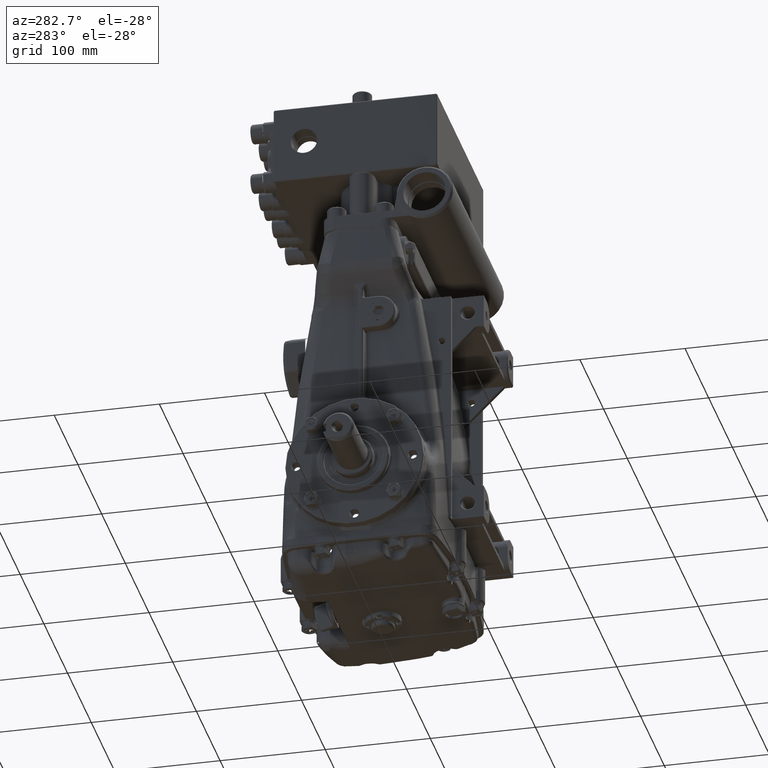
[diagram: clean part render]
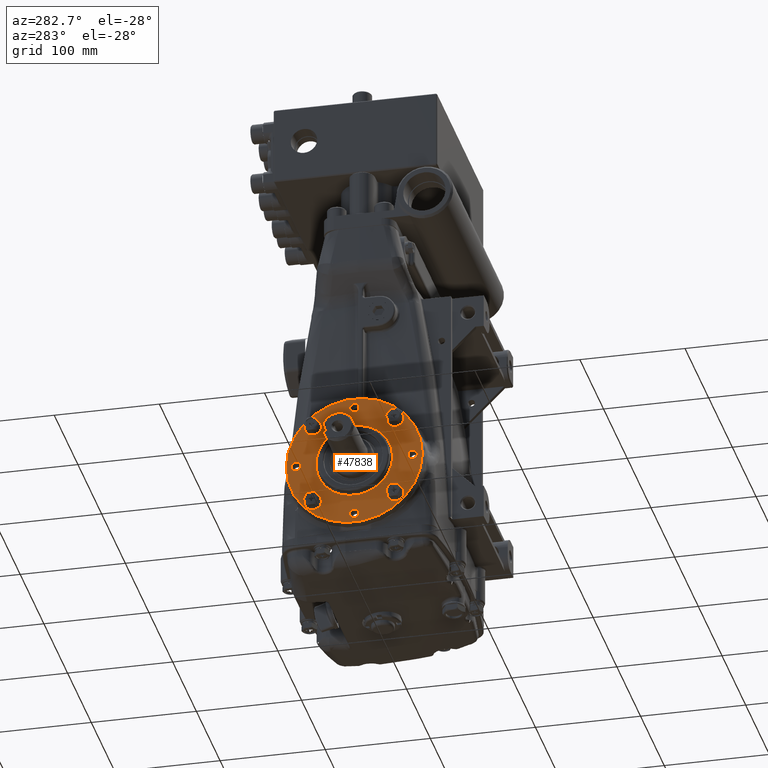
[diagram: same view with one face highlighted and labeled with its STEP entity id]
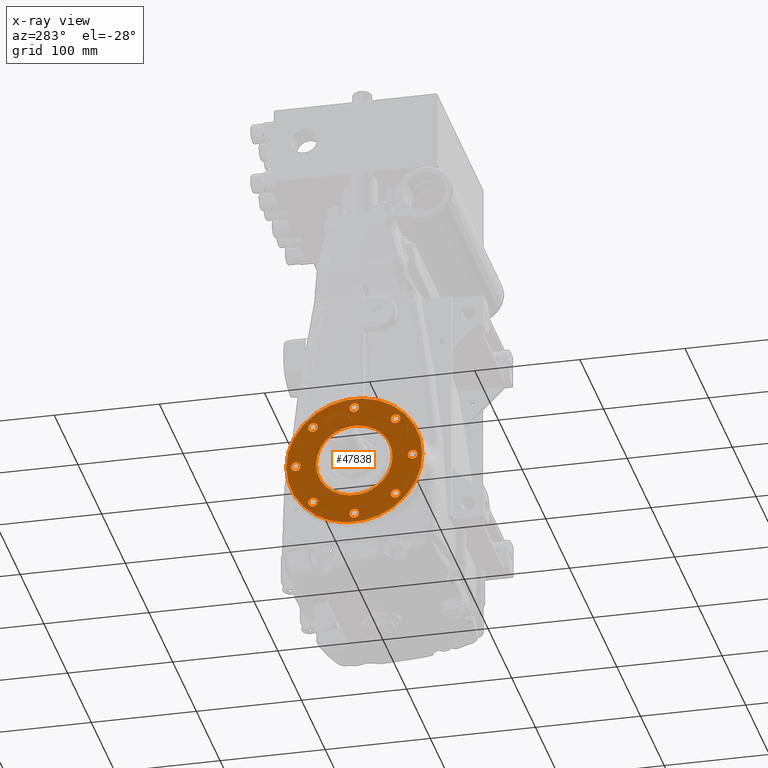
[diagram: x-ray of the same camera — body ghosted, the highlighted face saturated]
A machine part, auxiliary view. The second image highlights one B-rep face of the part: STEP entity #47838.
The next image is the same camera in x-ray: the body ghosted, the highlighted face saturated — about 4% of this face is hidden behind the body in this view.
In plain terms, the highlighted planar face has unit normal (-1, -0, 0).
Its self-contained STEP definition (entity closure, byte-faithful):
#183 = EDGE_LOOP ( 'NONE', ( #9369, #27994 ) ) ;
#824 = FACE_BOUND ( 'NONE', #49674, .T. ) ;
#887 = CARTESIAN_POINT ( 'NONE',  ( -4.763779527559056426, -3.201812557543903254E-16, -2.185039370078739829 ) ) ;
#1343 = DIRECTION ( 'NONE',  ( 1.224606353822377258E-16, -1.000000000000000000, 0.000000000000000000 ) ) ;
#1467 = DIRECTION ( 'NONE',  ( -1.000000000000000000, -1.224606353822377258E-16, 0.000000000000000000 ) ) ;
#3264 = DIRECTION ( 'NONE',  ( 1.000000000000000000, 1.224606353822377258E-16, -0.000000000000000000 ) ) ;
#3709 = VERTEX_POINT ( 'NONE', #66654 ) ;
#5013 = AXIS2_PLACEMENT_3D ( 'NONE', #38679, #53868, #5574 ) ;
#5574 = DIRECTION ( 'NONE',  ( 2.143124018246235517E-16, -1.000000000000000000, 0.000000000000000000 ) ) ;
#6235 = EDGE_CURVE ( 'NONE', #61597, #103043, #75857, .T. ) ;
#6705 = ORIENTED_EDGE ( 'NONE', *, *, #15991, .F. ) ;
#7317 = VERTEX_POINT ( 'NONE', #83175 ) ;
#8356 = ORIENTED_EDGE ( 'NONE', *, *, #20787, .F. ) ;
#8718 = EDGE_CURVE ( 'NONE', #79097, #87311, #29249, .T. ) ;
#8769 = CARTESIAN_POINT ( 'NONE',  ( -4.763779527559056426, -0.1771653543307089018, -2.185039370078739829 ) ) ;
#9369 = ORIENTED_EDGE ( 'NONE', *, *, #9974, .T. ) ;
#9974 = EDGE_CURVE ( 'NONE', #78466, #95333, #42811, .T. ) ;
#10071 = AXIS2_PLACEMENT_3D ( 'NONE', #55251, #71558, #86767 ) ;
#10822 = CARTESIAN_POINT ( 'NONE',  ( -4.763779527559055538, -2.185039370078740717, 2.048885995248197414E-16 ) ) ;
#10904 = AXIS2_PLACEMENT_3D ( 'NONE', #16111, #48141, #23485 ) ;
#11481 = CARTESIAN_POINT ( 'NONE',  ( -4.763779527559056426, 1.437007874015747921, 4.491675086927193450E-16 ) ) ;
#11531 = DIRECTION ( 'NONE',  ( 0.000000000000000000, -1.000000000000000000, 0.000000000000000000 ) ) ;
#13134 = ORIENTED_EDGE ( 'NONE', *, *, #33401, .F. ) ;
#14267 = CIRCLE ( 'NONE', #76355, 0.1771653543307085965 ) ;
#14568 = EDGE_CURVE ( 'NONE', #43127, #96000, #31485, .T. ) ;
#14634 = DIRECTION ( 'NONE',  ( -1.000000000000000000, -1.224606353822377258E-16, 0.000000000000000000 ) ) ;
#15774 = EDGE_CURVE ( 'NONE', #95333, #78466, #85443, .T. ) ;
#15991 = EDGE_CURVE ( 'NONE', #45094, #72563, #55311, .T. ) ;
#16055 = FACE_BOUND ( 'NONE', #34066, .T. ) ;
#16111 = CARTESIAN_POINT ( 'NONE',  ( -4.763779527559056426, -1.545056155742262849, 1.545056155742256188 ) ) ;
#17090 = CARTESIAN_POINT ( 'NONE',  ( -4.763779527559056426, 1.358267716535432879, 2.731847993664263218E-16 ) ) ;
#17144 = AXIS2_PLACEMENT_3D ( 'NONE', #17090, #96894, #1343 ) ;
#17663 = CARTESIAN_POINT ( 'NONE',  ( -4.763779527559056426, -1.437007874015748587, 2.731847993664263218E-16 ) ) ;
#18390 = AXIS2_PLACEMENT_3D ( 'NONE', #33959, #72301, #103746 ) ;
#18956 = AXIS2_PLACEMENT_3D ( 'NONE', #40838, #95422, #64447 ) ;
#19214 = DIRECTION ( 'NONE',  ( 0.000000000000000000, -1.000000000000000000, 0.000000000000000000 ) ) ;
#19281 = ORIENTED_EDGE ( 'NONE', *, *, #34814, .F. ) ;
#19345 = CIRCLE ( 'NONE', #37888, 1.437007874015748365 ) ;
#19535 = CARTESIAN_POINT ( 'NONE',  ( -4.763779527559056426, -3.128606229619096696E-16, 2.731847993664263218E-16 ) ) ;
#19952 = EDGE_LOOP ( 'NONE', ( #97321, #21270 ) ) ;
#20059 = VERTEX_POINT ( 'NONE', #87239 ) ;
#20787 = EDGE_CURVE ( 'NONE', #74841, #20059, #73735, .T. ) ;
#21270 = ORIENTED_EDGE ( 'NONE', *, *, #33523, .F. ) ;
#22323 = VERTEX_POINT ( 'NONE', #97870 ) ;
#22599 = DIRECTION ( 'NONE',  ( -1.000000000000000000, -1.224606353822377258E-16, 0.000000000000000000 ) ) ;
#23332 = ORIENTED_EDGE ( 'NONE', *, *, #39665, .F. ) ;
#23485 = DIRECTION ( 'NONE',  ( 0.000000000000000000, -1.000000000000000000, 0.000000000000000000 ) ) ;
#23869 = ORIENTED_EDGE ( 'NONE', *, *, #60657, .F. ) ;
#24020 = AXIS2_PLACEMENT_3D ( 'NONE', #86573, #14634, #71359 ) ;
#24574 = DIRECTION ( 'NONE',  ( 0.000000000000000000, -1.000000000000000000, 0.000000000000000000 ) ) ;
#27208 = CIRCLE ( 'NONE', #65812, 0.1771653543307085410 ) ;
#27386 = CARTESIAN_POINT ( 'NONE',  ( -4.763779527559056426, 1.545056155742260851, 1.545056155742257742 ) ) ;
#27806 = EDGE_CURVE ( 'NONE', #98765, #7317, #27208, .T. ) ;
#27892 = DIRECTION ( 'NONE',  ( -1.000000000000000000, -1.224606353822377258E-16, 0.000000000000000000 ) ) ;
#27928 = DIRECTION ( 'NONE',  ( 1.000000000000000000, 1.224606353822377258E-16, -0.000000000000000000 ) ) ;
#27994 = ORIENTED_EDGE ( 'NONE', *, *, #15774, .T. ) ;
#28238 = ORIENTED_EDGE ( 'NONE', *, *, #6235, .F. ) ;
#28304 = CIRCLE ( 'NONE', #65172, 0.1771653543307085965 ) ;
#28904 = CIRCLE ( 'NONE', #69129, 0.1771653543307085410 ) ;
#28978 = CIRCLE ( 'NONE', #59069, 0.1771653543307085965 ) ;
#29249 = CIRCLE ( 'NONE', #40953, 1.437007874015748365 ) ;
#29274 = ORIENTED_EDGE ( 'NONE', *, *, #33454, .F. ) ;
#29316 = ORIENTED_EDGE ( 'NONE', *, *, #8718, .T. ) ;
#30603 = AXIS2_PLACEMENT_3D ( 'NONE', #64727, #55788, #96745 ) ;
#30641 = VERTEX_POINT ( 'NONE', #74811 ) ;
#31170 = AXIS2_PLACEMENT_3D ( 'NONE', #10822, #97985, #19214 ) ;
#31485 = CIRCLE ( 'NONE', #66683, 0.1771653543307085410 ) ;
#31690 = ORIENTED_EDGE ( 'NONE', *, *, #45126, .F. ) ;
#32352 = FACE_BOUND ( 'NONE', #72719, .T. ) ;
#32399 = CIRCLE ( 'NONE', #18956, 0.1771653543307085410 ) ;
#32403 = ORIENTED_EDGE ( 'NONE', *, *, #27806, .F. ) ;
#32880 = FACE_BOUND ( 'NONE', #51085, .T. ) ;
#33401 = EDGE_CURVE ( 'NONE', #43307, #59437, #14267, .T. ) ;
#33454 = EDGE_CURVE ( 'NONE', #72563, #45094, #56180, .T. ) ;
#33523 = EDGE_CURVE ( 'NONE', #22323, #30641, #49584, .T. ) ;
#33959 = CARTESIAN_POINT ( 'NONE',  ( -4.763779527559056426, -1.545056155742262183, -1.545056155742256410 ) ) ;
#34066 = EDGE_LOOP ( 'NONE', ( #49966, #102237 ) ) ;
#34814 = EDGE_CURVE ( 'NONE', #35887, #3709, #94984, .T. ) ;
#35807 = DIRECTION ( 'NONE',  ( 0.000000000000000000, -1.000000000000000000, 0.000000000000000000 ) ) ;
#35887 = VERTEX_POINT ( 'NONE', #102222 ) ;
#35974 = EDGE_LOOP ( 'NONE', ( #6705, #29274 ) ) ;
#36314 = DIRECTION ( 'NONE',  ( 0.000000000000000000, -1.000000000000000000, 0.000000000000000000 ) ) ;
#37412 = CARTESIAN_POINT ( 'NONE',  ( -4.763779527559056426, -1.367890801411554280, 1.545056155742256188 ) ) ;
#37888 = AXIS2_PLACEMENT_3D ( 'NONE', #99810, #27928, #91943 ) ;
#38679 = CARTESIAN_POINT ( 'NONE',  ( -4.763779527559056426, -3.128606229619096696E-16, 2.731847993664263218E-16 ) ) ;
#39665 = EDGE_CURVE ( 'NONE', #103043, #61597, #28304, .T. ) ;
#40489 = CARTESIAN_POINT ( 'NONE',  ( -4.763779527559056426, 2.549407286191298194, 5.878064001409687907E-16 ) ) ;
#40838 = CARTESIAN_POINT ( 'NONE',  ( -4.763779527559055538, -2.185039370078740717, 2.048885995248197414E-16 ) ) ;
#40953 = AXIS2_PLACEMENT_3D ( 'NONE', #19535, #3264, #52060 ) ;
#42811 = CIRCLE ( 'NONE', #57874, 2.549407286191298638 ) ;
#42875 = CARTESIAN_POINT ( 'NONE',  ( -4.763779527559055538, -2.549407286191299082, 2.731847993664263218E-16 ) ) ;
#43127 = VERTEX_POINT ( 'NONE', #89209 ) ;
#43307 = VERTEX_POINT ( 'NONE', #8769 ) ;
#45094 = VERTEX_POINT ( 'NONE', #89370 ) ;
#45126 = EDGE_CURVE ( 'NONE', #7317, #98765, #90510, .T. ) ;
#45255 = AXIS2_PLACEMENT_3D ( 'NONE', #59913, #67802, #35807 ) ;
#46031 = CARTESIAN_POINT ( 'NONE',  ( -4.763779527559056426, 1.367890801411552282, 1.545056155742257742 ) ) ;
#47838 = ADVANCED_FACE ( 'NONE', ( #80620, #824, #66420, #81658, #32352, #32880, #56997, #73299, #90044, #16055 ), #49633, .T. ) ;
#47942 = CARTESIAN_POINT ( 'NONE',  ( -4.763779527559056426, 0.1771653543307082912, -2.185039370078739829 ) ) ;
#48141 = DIRECTION ( 'NONE',  ( -1.000000000000000000, -1.224606353822377258E-16, 0.000000000000000000 ) ) ;
#49584 = CIRCLE ( 'NONE', #31170, 0.1771653543307085410 ) ;
#49633 = PLANE ( 'NONE',  #17144 ) ;
#49674 = EDGE_LOOP ( 'NONE', ( #94057, #29316 ) ) ;
#49966 = ORIENTED_EDGE ( 'NONE', *, *, #57101, .F. ) ;
#51085 = EDGE_LOOP ( 'NONE', ( #32403, #31690 ) ) ;
#51429 = CARTESIAN_POINT ( 'NONE',  ( -4.763779527559056426, -0.1771653543307089018, 2.185039370078740717 ) ) ;
#52017 = DIRECTION ( 'NONE',  ( -1.000000000000000000, -1.224606353822377258E-16, 0.000000000000000000 ) ) ;
#52060 = DIRECTION ( 'NONE',  ( 0.000000000000000000, -1.000000000000000000, 0.000000000000000000 ) ) ;
#53766 = ORIENTED_EDGE ( 'NONE', *, *, #57436, .F. ) ;
#53868 = DIRECTION ( 'NONE',  ( -1.000000000000000000, -1.224606353822377258E-16, 0.000000000000000000 ) ) ;
#54955 = DIRECTION ( 'NONE',  ( -1.000000000000000000, -1.224606353822377258E-16, 0.000000000000000000 ) ) ;
#55251 = CARTESIAN_POINT ( 'NONE',  ( -4.763779527559056426, -1.545056155742262849, 1.545056155742256188 ) ) ;
#55311 = CIRCLE ( 'NONE', #10071, 0.1771653543307085410 ) ;
#55514 = DIRECTION ( 'NONE',  ( -1.000000000000000000, -1.224606353822377258E-16, 0.000000000000000000 ) ) ;
#55587 = CARTESIAN_POINT ( 'NONE',  ( -4.763779527559056426, 0.1771653543307082912, 2.185039370078740717 ) ) ;
#55788 = DIRECTION ( 'NONE',  ( -1.000000000000000000, -1.224606353822377258E-16, 0.000000000000000000 ) ) ;
#56164 = DIRECTION ( 'NONE',  ( -1.000000000000000000, -1.224606353822377258E-16, 0.000000000000000000 ) ) ;
#56180 = CIRCLE ( 'NONE', #10904, 0.1771653543307085410 ) ;
#56997 = FACE_BOUND ( 'NONE', #60485, .T. ) ;
#57101 = EDGE_CURVE ( 'NONE', #96000, #43127, #28904, .T. ) ;
#57436 = EDGE_CURVE ( 'NONE', #59437, #43307, #28978, .T. ) ;
#57874 = AXIS2_PLACEMENT_3D ( 'NONE', #61967, #22599, #71412 ) ;
#58868 = DIRECTION ( 'NONE',  ( 0.000000000000000000, -1.000000000000000000, 0.000000000000000000 ) ) ;
#59069 = AXIS2_PLACEMENT_3D ( 'NONE', #80830, #56164, #64041 ) ;
#59437 = VERTEX_POINT ( 'NONE', #47942 ) ;
#59913 = CARTESIAN_POINT ( 'NONE',  ( -4.763779527559056426, 2.185039370078739829, 2.048885995248197414E-16 ) ) ;
#60485 = EDGE_LOOP ( 'NONE', ( #68065, #19281 ) ) ;
#60657 = EDGE_CURVE ( 'NONE', #20059, #74841, #69273, .T. ) ;
#61597 = VERTEX_POINT ( 'NONE', #55587 ) ;
#61967 = CARTESIAN_POINT ( 'NONE',  ( -4.763779527559056426, -3.128606229619096696E-16, 2.731847993664263218E-16 ) ) ;
#63560 = EDGE_CURVE ( 'NONE', #87311, #79097, #19345, .T. ) ;
#64041 = DIRECTION ( 'NONE',  ( 0.000000000000000000, -1.000000000000000000, 0.000000000000000000 ) ) ;
#64447 = DIRECTION ( 'NONE',  ( 0.000000000000000000, -1.000000000000000000, 0.000000000000000000 ) ) ;
#64471 = DIRECTION ( 'NONE',  ( 0.000000000000000000, -1.000000000000000000, 0.000000000000000000 ) ) ;
#64727 = CARTESIAN_POINT ( 'NONE',  ( -4.763779527559056426, -3.201812557543903254E-16, 2.185039370078740717 ) ) ;
#65172 = AXIS2_PLACEMENT_3D ( 'NONE', #85003, #99724, #11531 ) ;
#65812 = AXIS2_PLACEMENT_3D ( 'NONE', #84549, #94488, #68290 ) ;
#66420 = FACE_BOUND ( 'NONE', #19952, .T. ) ;
#66654 = CARTESIAN_POINT ( 'NONE',  ( -4.763779527559056426, 1.367890801411552948, -1.545056155742256410 ) ) ;
#66683 = AXIS2_PLACEMENT_3D ( 'NONE', #73414, #1467, #64471 ) ;
#67802 = DIRECTION ( 'NONE',  ( -1.000000000000000000, -1.224606353822377258E-16, 0.000000000000000000 ) ) ;
#68065 = ORIENTED_EDGE ( 'NONE', *, *, #69867, .F. ) ;
#68290 = DIRECTION ( 'NONE',  ( 0.000000000000000000, -1.000000000000000000, 0.000000000000000000 ) ) ;
#69129 = AXIS2_PLACEMENT_3D ( 'NONE', #27386, #27892, #58868 ) ;
#69273 = CIRCLE ( 'NONE', #24020, 0.1771653543307085410 ) ;
#69867 = EDGE_CURVE ( 'NONE', #3709, #35887, #101991, .T. ) ;
#71359 = DIRECTION ( 'NONE',  ( 0.000000000000000000, -1.000000000000000000, 0.000000000000000000 ) ) ;
#71412 = DIRECTION ( 'NONE',  ( 2.143124018246235517E-16, -1.000000000000000000, 0.000000000000000000 ) ) ;
#71558 = DIRECTION ( 'NONE',  ( -1.000000000000000000, -1.224606353822377258E-16, 0.000000000000000000 ) ) ;
#72301 = DIRECTION ( 'NONE',  ( -1.000000000000000000, -1.224606353822377258E-16, 0.000000000000000000 ) ) ;
#72348 = CARTESIAN_POINT ( 'NONE',  ( -4.763779527559056426, 1.545056155742261517, -1.545056155742256410 ) ) ;
#72563 = VERTEX_POINT ( 'NONE', #37412 ) ;
#72719 = EDGE_LOOP ( 'NONE', ( #28238, #23332 ) ) ;
#73299 = FACE_BOUND ( 'NONE', #99650, .T. ) ;
#73414 = CARTESIAN_POINT ( 'NONE',  ( -4.763779527559056426, 1.545056155742260851, 1.545056155742257742 ) ) ;
#73735 = CIRCLE ( 'NONE', #18390, 0.1771653543307085410 ) ;
#74811 = CARTESIAN_POINT ( 'NONE',  ( -4.763779527559055538, -2.007874015748031926, 2.048885995248197414E-16 ) ) ;
#74841 = VERTEX_POINT ( 'NONE', #102241 ) ;
#75857 = CIRCLE ( 'NONE', #30603, 0.1771653543307085965 ) ;
#76355 = AXIS2_PLACEMENT_3D ( 'NONE', #887, #54955, #86989 ) ;
#78466 = VERTEX_POINT ( 'NONE', #42875 ) ;
#79097 = VERTEX_POINT ( 'NONE', #11481 ) ;
#79891 = EDGE_CURVE ( 'NONE', #30641, #22323, #32399, .T. ) ;
#80620 = FACE_OUTER_BOUND ( 'NONE', #183, .T. ) ;
#80830 = CARTESIAN_POINT ( 'NONE',  ( -4.763779527559056426, -3.201812557543903254E-16, -2.185039370078739829 ) ) ;
#81658 = FACE_BOUND ( 'NONE', #86426, .T. ) ;
#83175 = CARTESIAN_POINT ( 'NONE',  ( -4.763779527559056426, 2.007874015748031482, 2.265850979349106479E-16 ) ) ;
#84549 = CARTESIAN_POINT ( 'NONE',  ( -4.763779527559056426, 2.185039370078739829, 2.048885995248197414E-16 ) ) ;
#85003 = CARTESIAN_POINT ( 'NONE',  ( -4.763779527559056426, -3.201812557543903254E-16, 2.185039370078740717 ) ) ;
#85443 = CIRCLE ( 'NONE', #5013, 2.549407286191298638 ) ;
#86426 = EDGE_LOOP ( 'NONE', ( #53766, #13134 ) ) ;
#86573 = CARTESIAN_POINT ( 'NONE',  ( -4.763779527559056426, -1.545056155742262183, -1.545056155742256410 ) ) ;
#86767 = DIRECTION ( 'NONE',  ( 0.000000000000000000, -1.000000000000000000, 0.000000000000000000 ) ) ;
#86989 = DIRECTION ( 'NONE',  ( 0.000000000000000000, -1.000000000000000000, 0.000000000000000000 ) ) ;
#87239 = CARTESIAN_POINT ( 'NONE',  ( -4.763779527559056426, -1.722221510072970752, -1.545056155742256410 ) ) ;
#87311 = VERTEX_POINT ( 'NONE', #17663 ) ;
#89209 = CARTESIAN_POINT ( 'NONE',  ( -4.763779527559056426, 1.722221510072969197, 1.545056155742257742 ) ) ;
#89370 = CARTESIAN_POINT ( 'NONE',  ( -4.763779527559056426, -1.722221510072971418, 1.545056155742256188 ) ) ;
#90044 = FACE_BOUND ( 'NONE', #35974, .T. ) ;
#90510 = CIRCLE ( 'NONE', #45255, 0.1771653543307085410 ) ;
#91361 = CARTESIAN_POINT ( 'NONE',  ( -4.763779527559056426, 2.362204724409448620, 2.048885995248197414E-16 ) ) ;
#91943 = DIRECTION ( 'NONE',  ( 0.000000000000000000, -1.000000000000000000, 0.000000000000000000 ) ) ;
#93617 = AXIS2_PLACEMENT_3D ( 'NONE', #72348, #55514, #24574 ) ;
#94057 = ORIENTED_EDGE ( 'NONE', *, *, #63560, .T. ) ;
#94488 = DIRECTION ( 'NONE',  ( -1.000000000000000000, -1.224606353822377258E-16, 0.000000000000000000 ) ) ;
#94984 = CIRCLE ( 'NONE', #98366, 0.1771653543307085410 ) ;
#95333 = VERTEX_POINT ( 'NONE', #40489 ) ;
#95422 = DIRECTION ( 'NONE',  ( -1.000000000000000000, -1.224606353822377258E-16, 0.000000000000000000 ) ) ;
#96000 = VERTEX_POINT ( 'NONE', #46031 ) ;
#96745 = DIRECTION ( 'NONE',  ( 0.000000000000000000, -1.000000000000000000, 0.000000000000000000 ) ) ;
#96894 = DIRECTION ( 'NONE',  ( -1.000000000000000000, -1.224606353822377258E-16, 0.000000000000000000 ) ) ;
#97321 = ORIENTED_EDGE ( 'NONE', *, *, #79891, .F. ) ;
#97870 = CARTESIAN_POINT ( 'NONE',  ( -4.763779527559055538, -2.362204724409449064, 2.265850979349106479E-16 ) ) ;
#97985 = DIRECTION ( 'NONE',  ( -1.000000000000000000, -1.224606353822377258E-16, 0.000000000000000000 ) ) ;
#98366 = AXIS2_PLACEMENT_3D ( 'NONE', #100814, #52017, #36314 ) ;
#98765 = VERTEX_POINT ( 'NONE', #91361 ) ;
#99650 = EDGE_LOOP ( 'NONE', ( #23869, #8356 ) ) ;
#99724 = DIRECTION ( 'NONE',  ( -1.000000000000000000, -1.224606353822377258E-16, 0.000000000000000000 ) ) ;
#99810 = CARTESIAN_POINT ( 'NONE',  ( -4.763779527559056426, -3.128606229619096696E-16, 2.731847993664263218E-16 ) ) ;
#100814 = CARTESIAN_POINT ( 'NONE',  ( -4.763779527559056426, 1.545056155742261517, -1.545056155742256410 ) ) ;
#101991 = CIRCLE ( 'NONE', #93617, 0.1771653543307085410 ) ;
#102222 = CARTESIAN_POINT ( 'NONE',  ( -4.763779527559056426, 1.722221510072970085, -1.545056155742256410 ) ) ;
#102237 = ORIENTED_EDGE ( 'NONE', *, *, #14568, .F. ) ;
#102241 = CARTESIAN_POINT ( 'NONE',  ( -4.763779527559056426, -1.367890801411553614, -1.545056155742256410 ) ) ;
#103043 = VERTEX_POINT ( 'NONE', #51429 ) ;
#103746 = DIRECTION ( 'NONE',  ( 0.000000000000000000, -1.000000000000000000, 0.000000000000000000 ) ) ;